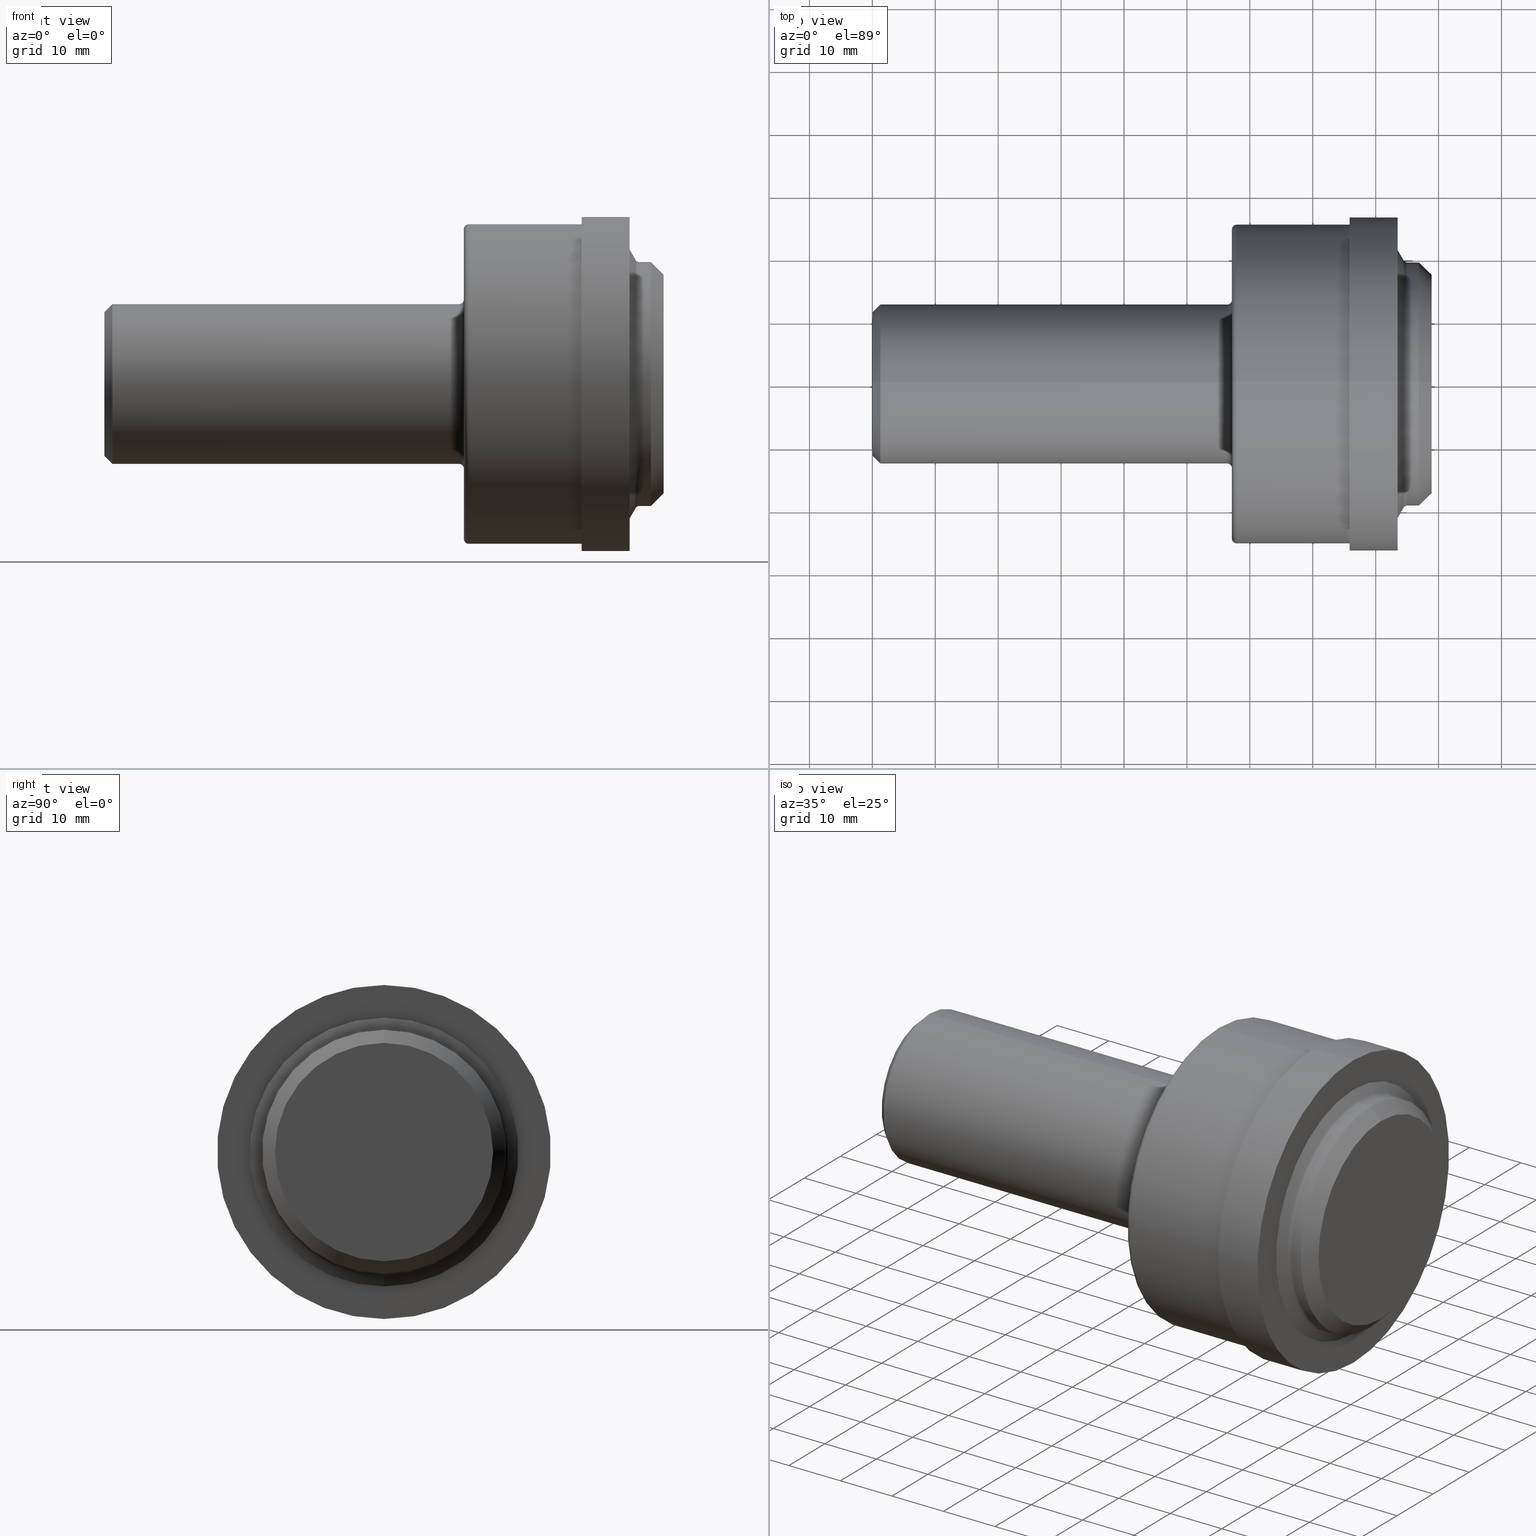
[diagram: canonical four-view strip — front | top / right | iso, engineering-drawing reading convention]
A machine part, canonical four-view strip (front | top / right | iso — engineering-drawing reading convention). The complete STEP part file that produces these views, byte-faithful:
ISO-10303-21;
HEADER;
FILE_DESCRIPTION (( 'STEP AP203' ),
    '1' );
FILE_NAME ('AS5202-18X.STEP',
    '2023-11-10T23:54:02',
    ( '' ),
    ( '' ),
    'SwSTEP 2.0',
    'SolidWorks 2022',
    '' );
FILE_SCHEMA (( 'CONFIG_CONTROL_DESIGN' ));
ENDSEC;

DATA;
#1 = VECTOR ( 'NONE', #225, 39.37007874015748143 ) ;
#2 = DIRECTION ( 'NONE',  ( -1.000000000000000000, -0.000000000000000000, -0.000000000000000000 ) ) ;
#3 = CARTESIAN_POINT ( 'NONE',  ( 3.500000000000000000, 8.855421004634508319E-17, -0.6830999999999995964 ) ) ;
#4 = ADVANCED_FACE ( 'NONE', ( #254 ), #531, .T. ) ;
#5 = ORIENTED_EDGE ( 'NONE', *, *, #406, .T. ) ;
#6 = DIRECTION ( 'NONE',  ( -1.000000000000000000, -0.000000000000000000, -0.000000000000000000 ) ) ;
#7 = LINE ( 'NONE', #502, #387 ) ;
#8 = ORIENTED_EDGE ( 'NONE', *, *, #373, .F. ) ;
#9 = CIRCLE ( 'NONE', #666, 1.000000000000000000 ) ;
#10 = FACE_OUTER_BOUND ( 'NONE', #64, .T. ) ;
#11 = ORIENTED_EDGE ( 'NONE', *, *, #582, .T. ) ;
#12 = ORIENTED_EDGE ( 'NONE', *, *, #138, .T. ) ;
#13 = ADVANCED_FACE ( 'NONE', ( #421 ), #324, .F. ) ;
#14 = CIRCLE ( 'NONE', #695, 0.4998500000000000165 ) ;
#15 = SHAPE_DEFINITION_REPRESENTATION ( #604, #409 ) ;
#16 = AXIS2_PLACEMENT_3D ( 'NONE', #615, #623, #239 ) ;
#17 = DIRECTION ( 'NONE',  ( 0.7071067811865489050, 0.000000000000000000, -0.7071067811865461294 ) ) ;
#18 = ORIENTED_EDGE ( 'NONE', *, *, #364, .T. ) ;
#19 = EDGE_LOOP ( 'NONE', ( #578, #5, #367, #374 ) ) ;
#20 = ORIENTED_EDGE ( 'NONE', *, *, #701, .T. ) ;
#21 = PERSON_AND_ORGANIZATION ( #342, #663 ) ;
#22 = CARTESIAN_POINT ( 'NONE',  ( 0.000000000000000000, 0.000000000000000000, 0.000000000000000000 ) ) ;
#23 = VERTEX_POINT ( 'NONE', #634 ) ;
#24 = ORIENTED_EDGE ( 'NONE', *, *, #500, .T. ) ;
#25 = VERTEX_POINT ( 'NONE', #148 ) ;
#26 = DIRECTION ( 'NONE',  ( -1.000000000000000000, -0.000000000000000000, -0.000000000000000000 ) ) ;
#27 = CARTESIAN_POINT ( 'NONE',  ( 2.220000000000000195, 0.000000000000000000, 0.000000000000000000 ) ) ;
#28 = AXIS2_PLACEMENT_3D ( 'NONE', #116, #45, #219 ) ;
#29 = ORIENTED_EDGE ( 'NONE', *, *, #699, .F. ) ;
#30 = DIRECTION ( 'NONE',  ( -1.000000000000000000, -0.000000000000000000, -0.000000000000000000 ) ) ;
#31 = EDGE_CURVE ( 'NONE', #591, #562, #79, .T. ) ;
#32 = CONICAL_SURFACE ( 'NONE', #523, 0.6830999999999995964, 0.7853981633974491672 ) ;
#33 = LINE ( 'NONE', #247, #426 ) ;
#34 = CONICAL_SURFACE ( 'NONE', #652, 0.6830999999999995964, 0.7853981633974491672 ) ;
#35 = VERTEX_POINT ( 'NONE', #193 ) ;
#36 = DIRECTION ( 'NONE',  ( -1.000000000000000000, -0.000000000000000000, -0.000000000000000000 ) ) ;
#37 = CIRCLE ( 'NONE', #139, 0.4498500000000001942 ) ;
#38 = CARTESIAN_POINT ( 'NONE',  ( 2.279999999999999805, 0.000000000000000000, 0.000000000000000000 ) ) ;
#39 = CARTESIAN_POINT ( 'NONE',  ( 0.000000000000000000, 5.815235325751207941E-17, 0.4498500000000001942 ) ) ;
#40 = DIRECTION ( 'NONE',  ( 0.000000000000000000, 0.000000000000000000, 1.000000000000000000 ) ) ;
#41 = TOROIDAL_SURFACE ( 'NONE', #610, 0.9700000000000000844, 0.02999999999999995379 ) ;
#42 = DIRECTION ( 'NONE',  ( -1.000000000000000000, -0.000000000000000000, -0.000000000000000000 ) ) ;
#43 = CARTESIAN_POINT ( 'NONE',  ( 3.500000000000000000, 0.6830999999999995964, 0.000000000000000000 ) ) ;
#44 = APPROVAL ( #631, 'UNSPECIFIED' ) ;
#45 = DIRECTION ( 'NONE',  ( -1.000000000000000000, -0.000000000000000000, -0.000000000000000000 ) ) ;
#46 = CC_DESIGN_APPROVAL ( #56, ( #382 ) ) ;
#47 = CARTESIAN_POINT ( 'NONE',  ( 3.323892682201216697, 0.000000000000000000, 0.000000000000000000 ) ) ;
#48 = DIRECTION ( 'NONE',  ( 0.000000000000000000, 0.000000000000000000, 1.000000000000000000 ) ) ;
#49 = EDGE_CURVE ( 'NONE', #399, #629, #288, .T. ) ;
#50 = DIRECTION ( 'NONE',  ( -1.000000000000000000, -0.000000000000000000, -0.000000000000000000 ) ) ;
#51 = DIRECTION ( 'NONE',  ( 0.000000000000000000, 0.000000000000000000, 1.000000000000000000 ) ) ;
#52 = EDGE_CURVE ( 'NONE', #570, #402, #142, .T. ) ;
#53 = FACE_OUTER_BOUND ( 'NONE', #354, .T. ) ;
#54 = DIRECTION ( 'NONE',  ( -0.7071067811865469066, 0.000000000000000000, 0.7071067811865481278 ) ) ;
#55 = ORIENTED_EDGE ( 'NONE', *, *, #122, .F. ) ;
#56 = APPROVAL ( #477, 'UNSPECIFIED' ) ;
#57 = DIRECTION ( 'NONE',  ( 0.000000000000000000, 0.000000000000000000, 1.000000000000000000 ) ) ;
#58 = LINE ( 'NONE', #456, #1 ) ;
#59 = ORIENTED_EDGE ( 'NONE', *, *, #504, .F. ) ;
#60 = CIRCLE ( 'NONE', #476, 0.9700000000000000844 ) ;
#61 = EDGE_CURVE ( 'NONE', #402, #570, #229, .T. ) ;
#62 = PERSON_AND_ORGANIZATION ( #342, #663 ) ;
#63 = DIRECTION ( 'NONE',  ( -1.000000000000000000, -0.000000000000000000, -0.000000000000000000 ) ) ;
#64 = EDGE_LOOP ( 'NONE', ( #678, #181, #585, #190 ) ) ;
#65 = TOROIDAL_SURFACE ( 'NONE', #28, 0.7921000000000000263, 0.02900000000000045944 ) ;
#66 = DATE_AND_TIME ( #128, #412 ) ;
#67 = CIRCLE ( 'NONE', #544, 0.4998500000000000165 ) ;
#68 = CARTESIAN_POINT ( 'NONE',  ( 3.349007418910965317, 9.345279724293448517E-17, -0.7630999999999995564 ) ) ;
#69 = PRODUCT_DEFINITION ( 'UNKNOWN', '', #99, #528 ) ;
#70 = ORIENTED_EDGE ( 'NONE', *, *, #537, .F. ) ;
#71 = LINE ( 'NONE', #424, #443 ) ;
#72 = ORIENTED_EDGE ( 'NONE', *, *, #31, .F. ) ;
#73 = ADVANCED_FACE ( 'NONE', ( #314 ), #649, .T. ) ;
#74 = CIRCLE ( 'NONE', #606, 0.7630999999999995564 ) ;
#75 = ORIENTED_EDGE ( 'NONE', *, *, #61, .T. ) ;
#76 = DIRECTION ( 'NONE',  ( -0.000000000000000000, 0.000000000000000000, 1.000000000000000000 ) ) ;
#77 = EDGE_CURVE ( 'NONE', #591, #149, #375, .T. ) ;
#78 = ORIENTED_EDGE ( 'NONE', *, *, #351, .F. ) ;
#79 = CIRCLE ( 'NONE', #450, 0.4998500000000000165 ) ;
#80 = CONICAL_SURFACE ( 'NONE', #491, 0.4998500000000000165, 0.7853981633974463916 ) ;
#81 = VECTOR ( 'NONE', #665, 39.37007874015748143 ) ;
#82 = CARTESIAN_POINT ( 'NONE',  ( 2.279999999999999805, 0.000000000000000000, 0.000000000000000000 ) ) ;
#83 = ORIENTED_EDGE ( 'NONE', *, *, #485, .T. ) ;
#84 = DIRECTION ( 'NONE',  ( 0.000000000000000000, 0.000000000000000000, 1.000000000000000000 ) ) ;
#85 = ORIENTED_EDGE ( 'NONE', *, *, #592, .T. ) ;
#86 = CARTESIAN_POINT ( 'NONE',  ( 3.419999999999999485, 0.000000000000000000, 0.000000000000000000 ) ) ;
#87 = ORIENTED_EDGE ( 'NONE', *, *, #699, .T. ) ;
#88 = CARTESIAN_POINT ( 'NONE',  ( 2.986999999999999655, 0.000000000000000000, 0.000000000000000000 ) ) ;
#89 = PERSON_AND_ORGANIZATION ( #342, #663 ) ;
#90 = EDGE_CURVE ( 'NONE', #625, #474, #484, .T. ) ;
#91 = FACE_OUTER_BOUND ( 'NONE', #206, .T. ) ;
#92 = ORIENTED_EDGE ( 'NONE', *, *, #161, .T. ) ;
#93 = DIRECTION ( 'NONE',  ( -1.000000000000000000, -0.000000000000000000, -0.000000000000000000 ) ) ;
#94 = SECURITY_CLASSIFICATION_LEVEL ( 'unclassified' ) ;
#95 = DIRECTION ( 'NONE',  ( 0.000000000000000000, 0.000000000000000000, 1.000000000000000000 ) ) ;
#96 = AXIS2_PLACEMENT_3D ( 'NONE', #496, #715, #463 ) ;
#97 = ORIENTED_EDGE ( 'NONE', *, *, #358, .F. ) ;
#98 = DIRECTION ( 'NONE',  ( 1.000000000000000000, 0.000000000000000000, 0.000000000000000000 ) ) ;
#99 = PRODUCT_DEFINITION_FORMATION_WITH_SPECIFIED_SOURCE ( 'ANY', '', #296, .NOT_KNOWN. ) ;
#100 = DIRECTION ( 'NONE',  ( 0.000000000000000000, 0.000000000000000000, 1.000000000000000000 ) ) ;
#101 = EDGE_CURVE ( 'NONE', #562, #591, #14, .T. ) ;
#102 = CARTESIAN_POINT ( 'NONE',  ( 2.250000000000000444, 0.000000000000000000, 0.5298500000000000432 ) ) ;
#103 = CARTESIAN_POINT ( 'NONE',  ( 0.000000000000000000, 0.000000000000000000, 0.000000000000000000 ) ) ;
#104 = APPROVAL ( #501, 'UNSPECIFIED' ) ;
#105 = FACE_OUTER_BOUND ( 'NONE', #134, .T. ) ;
#106 = AXIS2_PLACEMENT_3D ( 'NONE', #422, #261, #84 ) ;
#107 = CARTESIAN_POINT ( 'NONE',  ( 0.000000000000000000, 0.000000000000000000, 0.000000000000000000 ) ) ;
#108 = ADVANCED_FACE ( 'NONE', ( #599 ), #662, .T. ) ;
#109 = DIRECTION ( 'NONE',  ( -1.000000000000000000, -0.000000000000000000, -0.000000000000000000 ) ) ;
#110 = CARTESIAN_POINT ( 'NONE',  ( 2.250000000000000444, 0.9700000000000000844, 0.000000000000000000 ) ) ;
#111 = CARTESIAN_POINT ( 'NONE',  ( 2.986999999999999655, 0.000000000000000000, 1.000000000000000000 ) ) ;
#112 = ADVANCED_FACE ( 'NONE', ( #271 ), #65, .F. ) ;
#113 = AXIS2_PLACEMENT_3D ( 'NONE', #210, #146, #632 ) ;
#114 = DIRECTION ( 'NONE',  ( -1.000000000000000000, -0.000000000000000000, -0.000000000000000000 ) ) ;
#115 =( NAMED_UNIT ( * ) SI_UNIT ( $, .STERADIAN. ) SOLID_ANGLE_UNIT ( ) );
#116 = CARTESIAN_POINT ( 'NONE',  ( 3.349007418910966649, 0.000000000000000000, 0.000000000000000000 ) ) ;
#117 = AXIS2_PLACEMENT_3D ( 'NONE', #22, #252, #196 ) ;
#118 = ORIENTED_EDGE ( 'NONE', *, *, #306, .T. ) ;
#119 = AXIS2_PLACEMENT_3D ( 'NONE', #384, #546, #333 ) ;
#120 = DIRECTION ( 'NONE',  ( 0.000000000000000000, 0.000000000000000000, -1.000000000000000000 ) ) ;
#121 = ORIENTED_EDGE ( 'NONE', *, *, #351, .T. ) ;
#122 = EDGE_CURVE ( 'NONE', #194, #379, #331, .T. ) ;
#123 = MECHANICAL_CONTEXT ( 'NONE', #307, 'mechanical' ) ;
#124 = DIRECTION ( 'NONE',  ( 0.000000000000000000, 0.000000000000000000, 1.000000000000000000 ) ) ;
#125 = EDGE_LOOP ( 'NONE', ( #417, #686 ) ) ;
#126 = AXIS2_PLACEMENT_3D ( 'NONE', #517, #378, #95 ) ;
#127 = CIRCLE ( 'NONE', #160, 1.000000000000000000 ) ;
#128 = CALENDAR_DATE ( 2023, 10, 11 ) ;
#129 = CARTESIAN_POINT ( 'NONE',  ( 3.286999999999999478, 0.000000000000000000, 0.000000000000000000 ) ) ;
#130 = ORIENTED_EDGE ( 'NONE', *, *, #454, .T. ) ;
#131 = DIRECTION ( 'NONE',  ( -0.000000000000000000, 1.000000000000000000, 1.224646799147353207E-16 ) ) ;
#132 = ADVANCED_FACE ( 'NONE', ( #391 ), #355, .T. ) ;
#133 = DIRECTION ( 'NONE',  ( 0.000000000000000000, -1.000000000000000000, 0.000000000000000000 ) ) ;
#134 = EDGE_LOOP ( 'NONE', ( #78, #416 ) ) ;
#135 = APPROVAL_PERSON_ORGANIZATION ( #622, #104, #233 ) ;
#136 = VERTEX_POINT ( 'NONE', #539 ) ;
#137 = CARTESIAN_POINT ( 'NONE',  ( 3.286999999999999478, 0.000000000000000000, 0.000000000000000000 ) ) ;
#138 = EDGE_CURVE ( 'NONE', #360, #379, #145, .T. ) ;
#139 = AXIS2_PLACEMENT_3D ( 'NONE', #361, #526, #572 ) ;
#140 = VERTEX_POINT ( 'NONE', #493 ) ;
#141 = VERTEX_POINT ( 'NONE', #39 ) ;
#142 = CIRCLE ( 'NONE', #106, 1.044999999999999929 ) ;
#143 = TOROIDAL_SURFACE ( 'NONE', #522, 0.5298500000000000432, 0.03000000000000012379 ) ;
#144 = APPROVAL_DATE_TIME ( #319, #56 ) ;
#145 = CIRCLE ( 'NONE', #660, 0.02900000000000042821 ) ;
#146 = DIRECTION ( 'NONE',  ( -1.000000000000000000, -0.000000000000000000, -0.000000000000000000 ) ) ;
#147 = EDGE_LOOP ( 'NONE', ( #235, #672 ) ) ;
#148 = CARTESIAN_POINT ( 'NONE',  ( 3.419999999999999485, 0.000000000000000000, 0.7631000000000000005 ) ) ;
#149 = VERTEX_POINT ( 'NONE', #551 ) ;
#150 = CARTESIAN_POINT ( 'NONE',  ( 0.000000000000000000, 1.279755905108984103E-16, -1.044999999999999929 ) ) ;
#151 = EDGE_LOOP ( 'NONE', ( #341, #455, #535, #614 ) ) ;
#152 = DIRECTION ( 'NONE',  ( 0.000000000000000000, 0.000000000000000000, 1.000000000000000000 ) ) ;
#153 = APPROVAL_PERSON_ORGANIZATION ( #89, #56, #694 ) ;
#154 = PERSON_AND_ORGANIZATION_ROLE ( 'design_supplier' ) ;
#155 = DIRECTION ( 'NONE',  ( 0.000000000000000000, 0.000000000000000000, 1.000000000000000000 ) ) ;
#156 = EDGE_LOOP ( 'NONE', ( #669, #248, #346, #92 ) ) ;
#157 = CARTESIAN_POINT ( 'NONE',  ( 2.279999999999999805, 0.000000000000000000, 0.000000000000000000 ) ) ;
#158 = CARTESIAN_POINT ( 'NONE',  ( 0.000000000000000000, 9.345279724293450983E-17, -0.7630999999999998895 ) ) ;
#159 = CARTESIAN_POINT ( 'NONE',  ( 3.500000000000000000, 0.000000000000000000, 0.000000000000000000 ) ) ;
#160 = AXIS2_PLACEMENT_3D ( 'NONE', #220, #650, #541 ) ;
#161 = EDGE_CURVE ( 'NONE', #149, #305, #67, .T. ) ;
#162 = DIMENSIONAL_EXPONENTS ( 1.000000000000000000, 0.000000000000000000, 0.000000000000000000, 0.000000000000000000, 0.000000000000000000, 0.000000000000000000, 0.000000000000000000 ) ;
#163 = DIRECTION ( 'NONE',  ( -1.000000000000000000, -0.000000000000000000, -0.000000000000000000 ) ) ;
#164 = CARTESIAN_POINT ( 'NONE',  ( 3.349007418910966649, 9.700427296046183859E-17, -0.7921000000000000263 ) ) ;
#165 = AXIS2_PLACEMENT_3D ( 'NONE', #446, #133, #120 ) ;
#166 = EDGE_CURVE ( 'NONE', #369, #140, #232, .T. ) ;
#167 = CARTESIAN_POINT ( 'NONE',  ( 0.05000000000000000278, 0.000000000000000000, 0.000000000000000000 ) ) ;
#168 = DIRECTION ( 'NONE',  ( 0.000000000000000000, 0.000000000000000000, 1.000000000000000000 ) ) ;
#169 = DIRECTION ( 'NONE',  ( -1.000000000000000000, -0.000000000000000000, -0.000000000000000000 ) ) ;
#170 = CIRCLE ( 'NONE', #362, 0.9700000000000000844 ) ;
#171 = PLANE ( 'NONE',  #534 ) ;
#172 = DIRECTION ( 'NONE',  ( -0.7071067811865469066, 8.659560562354940254E-17, -0.7071067811865481278 ) ) ;
#173 = AXIS2_PLACEMENT_3D ( 'NONE', #494, #590, #40 ) ;
#174 = VERTEX_POINT ( 'NONE', #711 ) ;
#175 =( CONVERSION_BASED_UNIT ( 'INCH', #505 ) LENGTH_UNIT ( ) NAMED_UNIT ( #162 ) );
#176 = LINE ( 'NONE', #561, #231 ) ;
#177 = ORIENTED_EDGE ( 'NONE', *, *, #377, .T. ) ;
#178 = EDGE_CURVE ( 'NONE', #369, #570, #499, .T. ) ;
#179 = PERSON_AND_ORGANIZATION_ROLE ( 'creator' ) ;
#180 = DIRECTION ( 'NONE',  ( -1.000000000000000000, -0.000000000000000000, -0.000000000000000000 ) ) ;
#181 = ORIENTED_EDGE ( 'NONE', *, *, #77, .T. ) ;
#182 = ADVANCED_FACE ( 'NONE', ( #381 ), #32, .T. ) ;
#183 = FACE_OUTER_BOUND ( 'NONE', #198, .T. ) ;
#184 = EDGE_LOOP ( 'NONE', ( #85, #349 ) ) ;
#185 = UNCERTAINTY_MEASURE_WITH_UNIT (LENGTH_MEASURE( 1.000000000000000082E-05 ), #175, 'distance_accuracy_value', 'NONE');
#186 = ADVANCED_FACE ( 'NONE', ( #395 ), #431, .T. ) ;
#187 = APPROVAL_ROLE ( '' ) ;
#188 = CARTESIAN_POINT ( 'NONE',  ( 3.323892682201216697, 9.522853510169822351E-17, -0.7776000000000002910 ) ) ;
#189 = ORIENTED_EDGE ( 'NONE', *, *, #713, .T. ) ;
#190 = ORIENTED_EDGE ( 'NONE', *, *, #293, .F. ) ;
#191 = CARTESIAN_POINT ( 'NONE',  ( 2.986999999999999655, 1.224646799147353207E-16, -1.000000000000000000 ) ) ;
#192 = CC_DESIGN_PERSON_AND_ORGANIZATION_ASSIGNMENT ( #21, #626, ( #382 ) ) ;
#193 = CARTESIAN_POINT ( 'NONE',  ( 3.286999999999999478, 0.000000000000000000, 0.8415000000000000258 ) ) ;
#194 = VERTEX_POINT ( 'NONE', #655 ) ;
#195 = AXIS2_PLACEMENT_3D ( 'NONE', #43, #270, #273 ) ;
#196 = DIRECTION ( 'NONE',  ( 0.000000000000000000, 0.000000000000000000, 1.000000000000000000 ) ) ;
#197 = ORIENTED_EDGE ( 'NONE', *, *, #306, .F. ) ;
#198 = EDGE_LOOP ( 'NONE', ( #226, #724, #203, #414 ) ) ;
#199 = ADVANCED_FACE ( 'NONE', ( #705, #490 ), #171, .F. ) ;
#200 = EDGE_LOOP ( 'NONE', ( #621, #11 ) ) ;
#201 = COORDINATED_UNIVERSAL_TIME_OFFSET ( 8, 0, .BEHIND. ) ;
#202 = CIRCLE ( 'NONE', #16, 0.7631000000000000005 ) ;
#203 = ORIENTED_EDGE ( 'NONE', *, *, #461, .T. ) ;
#204 = DATE_AND_TIME ( #583, #442 ) ;
#205 = DIRECTION ( 'NONE',  ( -1.000000000000000000, -0.000000000000000000, -0.000000000000000000 ) ) ;
#206 = EDGE_LOOP ( 'NONE', ( #230, #681, #581, #366 ) ) ;
#207 = DIRECTION ( 'NONE',  ( -1.000000000000000000, -0.000000000000000000, -0.000000000000000000 ) ) ;
#208 = AXIS2_PLACEMENT_3D ( 'NONE', #320, #688, #419 ) ;
#209 = ADVANCED_FACE ( 'NONE', ( #595 ), #389, .T. ) ;
#210 = CARTESIAN_POINT ( 'NONE',  ( 0.05000000000000000278, 0.000000000000000000, 0.000000000000000000 ) ) ;
#211 = ORIENTED_EDGE ( 'NONE', *, *, #386, .T. ) ;
#212 = CLOSED_SHELL ( 'NONE', ( #340, #317, #548, #565, #209, #4, #132, #423, #186, #182, #667, #708, #73, #112, #556, #439, #246, #327, #532, #497, #199, #608, #108, #569, #13 ) ) ;
#213 = CARTESIAN_POINT ( 'NONE',  ( 2.250000000000000444, 0.000000000000000000, 0.000000000000000000 ) ) ;
#214 = AXIS2_PLACEMENT_3D ( 'NONE', #680, #228, #453 ) ;
#215 = CARTESIAN_POINT ( 'NONE',  ( 0.000000000000000000, 0.000000000000000000, 0.000000000000000000 ) ) ;
#216 = CARTESIAN_POINT ( 'NONE',  ( 0.000000000000000000, 0.000000000000000000, -0.4498500000000001942 ) ) ;
#217 = DIRECTION ( 'NONE',  ( -1.000000000000000000, -0.000000000000000000, -0.000000000000000000 ) ) ;
#218 = TOROIDAL_SURFACE ( 'NONE', #126, 0.7921000000000000263, 0.02900000000000045944 ) ;
#219 = DIRECTION ( 'NONE',  ( 0.000000000000000000, 0.000000000000000000, 1.000000000000000000 ) ) ;
#220 = CARTESIAN_POINT ( 'NONE',  ( 2.279999999999999805, 0.000000000000000000, 0.000000000000000000 ) ) ;
#221 = CARTESIAN_POINT ( 'NONE',  ( 3.286999999999999478, 0.000000000000000000, 0.000000000000000000 ) ) ;
#222 = CARTESIAN_POINT ( 'NONE',  ( 2.986999999999999655, 0.000000000000000000, 1.044999999999999929 ) ) ;
#223 = DIRECTION ( 'NONE',  ( 0.000000000000000000, 0.000000000000000000, 1.000000000000000000 ) ) ;
#224 = CIRCLE ( 'NONE', #208, 0.03000000000000015848 ) ;
#225 = DIRECTION ( 'NONE',  ( -1.000000000000000000, -0.000000000000000000, -0.000000000000000000 ) ) ;
#226 = ORIENTED_EDGE ( 'NONE', *, *, #582, .F. ) ;
#227 = DIRECTION ( 'NONE',  ( 0.000000000000000000, 0.000000000000000000, 1.000000000000000000 ) ) ;
#228 = DIRECTION ( 'NONE',  ( 1.000000000000000000, 0.000000000000000000, 0.000000000000000000 ) ) ;
#229 = CIRCLE ( 'NONE', #328, 1.044999999999999929 ) ;
#230 = ORIENTED_EDGE ( 'NONE', *, *, #664, .F. ) ;
#231 = VECTOR ( 'NONE', #172, 39.37007874015748143 ) ;
#232 = CIRCLE ( 'NONE', #330, 1.044999999999999929 ) ;
#233 = APPROVAL_ROLE ( '' ) ;
#234 = CARTESIAN_POINT ( 'NONE',  ( 0.05000000000000000278, 6.121397025538045565E-17, 0.4998500000000000165 ) ) ;
#235 = ORIENTED_EDGE ( 'NONE', *, *, #166, .F. ) ;
#236 = DIRECTION ( 'NONE',  ( 0.000000000000000000, 0.000000000000000000, 1.000000000000000000 ) ) ;
#237 = DIRECTION ( 'NONE',  ( 0.000000000000000000, 0.000000000000000000, 1.000000000000000000 ) ) ;
#238 = ORIENTED_EDGE ( 'NONE', *, *, #394, .F. ) ;
#239 = DIRECTION ( 'NONE',  ( 0.000000000000000000, 0.000000000000000000, 1.000000000000000000 ) ) ;
#240 = ORIENTED_EDGE ( 'NONE', *, *, #664, .T. ) ;
#241 = CIRCLE ( 'NONE', #452, 1.000000000000000000 ) ;
#242 = EDGE_CURVE ( 'NONE', #625, #479, #339, .T. ) ;
#243 = DIRECTION ( 'NONE',  ( 0.000000000000000000, 0.000000000000000000, 1.000000000000000000 ) ) ;
#244 = ORIENTED_EDGE ( 'NONE', *, *, #377, .F. ) ;
#245 = ORIENTED_EDGE ( 'NONE', *, *, #592, .F. ) ;
#246 = ADVANCED_FACE ( 'NONE', ( #549 ), #274, .T. ) ;
#247 = CARTESIAN_POINT ( 'NONE',  ( 0.000000000000000000, 0.000000000000000000, 0.7630999999999998895 ) ) ;
#248 = ORIENTED_EDGE ( 'NONE', *, *, #519, .F. ) ;
#249 = DIRECTION ( 'NONE',  ( 0.000000000000000000, 0.000000000000000000, 1.000000000000000000 ) ) ;
#250 = DATE_AND_TIME ( #372, #312 ) ;
#251 = AXIS2_PLACEMENT_3D ( 'NONE', #451, #619, #57 ) ;
#252 = DIRECTION ( 'NONE',  ( -1.000000000000000000, -0.000000000000000000, -0.000000000000000000 ) ) ;
#253 = ORIENTED_EDGE ( 'NONE', *, *, #552, .F. ) ;
#254 = FACE_OUTER_BOUND ( 'NONE', #630, .T. ) ;
#255 = VECTOR ( 'NONE', #93, 39.37007874015748143 ) ;
#256 = PERSON_AND_ORGANIZATION_ROLE ( 'creator' ) ;
#257 = CARTESIAN_POINT ( 'NONE',  ( 2.220000000000000195, 0.000000000000000000, 0.5298500000000000432 ) ) ;
#258 = EDGE_LOOP ( 'NONE', ( #8, #87, #18, #684 ) ) ;
#259 = CARTESIAN_POINT ( 'NONE',  ( 2.220000000000000195, 0.000000000000000000, 0.000000000000000000 ) ) ;
#260 = DIRECTION ( 'NONE',  ( 0.000000000000000000, 0.000000000000000000, 1.000000000000000000 ) ) ;
#261 = DIRECTION ( 'NONE',  ( -1.000000000000000000, -0.000000000000000000, -0.000000000000000000 ) ) ;
#262 = EDGE_CURVE ( 'NONE', #141, #305, #279, .T. ) ;
#263 = DIRECTION ( 'NONE',  ( 0.000000000000000000, -1.000000000000000000, 0.000000000000000000 ) ) ;
#264 = DIRECTION ( 'NONE',  ( -1.000000000000000000, -0.000000000000000000, -0.000000000000000000 ) ) ;
#265 = AXIS2_PLACEMENT_3D ( 'NONE', #390, #163, #383 ) ;
#266 = EDGE_CURVE ( 'NONE', #629, #25, #613, .T. ) ;
#267 = DIRECTION ( 'NONE',  ( 0.000000000000000000, 0.000000000000000000, 1.000000000000000000 ) ) ;
#268 = AXIS2_PLACEMENT_3D ( 'NONE', #668, #671, #297 ) ;
#269 = DIRECTION ( 'NONE',  ( -1.000000000000000000, -0.000000000000000000, -0.000000000000000000 ) ) ;
#270 = DIRECTION ( 'NONE',  ( -1.000000000000000000, 0.000000000000000000, -0.000000000000000000 ) ) ;
#271 = FACE_OUTER_BOUND ( 'NONE', #624, .T. ) ;
#272 = LOCAL_TIME ( 15, 54, 2.000000000000000000, #201 ) ;
#273 = DIRECTION ( 'NONE',  ( -0.000000000000000000, 0.000000000000000000, 1.000000000000000000 ) ) ;
#274 = CYLINDRICAL_SURFACE ( 'NONE', #96, 1.044999999999999929 ) ;
#275 = CC_DESIGN_PERSON_AND_ORGANIZATION_ASSIGNMENT ( #410, #154, ( #99 ) ) ;
#276 = DIRECTION ( 'NONE',  ( 0.000000000000000000, 0.000000000000000000, -1.000000000000000000 ) ) ;
#277 = DIRECTION ( 'NONE',  ( 0.000000000000000000, 0.000000000000000000, 1.000000000000000000 ) ) ;
#278 =( NAMED_UNIT ( * ) PLANE_ANGLE_UNIT ( ) SI_UNIT ( $, .RADIAN. ) );
#279 = LINE ( 'NONE', #234, #510 ) ;
#280 = ORIENTED_EDGE ( 'NONE', *, *, #560, .T. ) ;
#281 = CARTESIAN_POINT ( 'NONE',  ( 2.250000000000000444, 0.000000000000000000, 0.000000000000000000 ) ) ;
#282 = AXIS2_PLACEMENT_3D ( 'NONE', #86, #309, #260 ) ;
#283 = FACE_BOUND ( 'NONE', #691, .T. ) ;
#284 = EDGE_LOOP ( 'NONE', ( #29, #12, #299, #244 ) ) ;
#285 = AXIS2_PLACEMENT_3D ( 'NONE', #714, #131, #356 ) ;
#286 = PERSON_AND_ORGANIZATION_ROLE ( 'design_owner' ) ;
#287 = CYLINDRICAL_SURFACE ( 'NONE', #611, 0.4998500000000000165 ) ;
#288 = CIRCLE ( 'NONE', #648, 0.6830999999999995964 ) ;
#289 = EDGE_LOOP ( 'NONE', ( #573, #408, #567, #520 ) ) ;
#290 = VECTOR ( 'NONE', #620, 39.37007874015748143 ) ;
#291 = PERSON_AND_ORGANIZATION ( #342, #663 ) ;
#292 = CARTESIAN_POINT ( 'NONE',  ( 3.349007418910965317, 0.000000000000000000, 0.7630999999999995564 ) ) ;
#293 = EDGE_CURVE ( 'NONE', #562, #305, #58, .T. ) ;
#294 = ORIENTED_EDGE ( 'NONE', *, *, #646, .F. ) ;
#295 = CARTESIAN_POINT ( 'NONE',  ( 3.500000000000000000, 0.000000000000000000, 0.000000000000000000 ) ) ;
#296 = PRODUCT ( 'AS5202-18X', 'AS5202-18X', '', ( #123 ) ) ;
#297 = DIRECTION ( 'NONE',  ( 0.000000000000000000, 0.000000000000000000, 1.000000000000000000 ) ) ;
#298 = AXIS2_PLACEMENT_3D ( 'NONE', #82, #529, #586 ) ;
#299 = ORIENTED_EDGE ( 'NONE', *, *, #600, .T. ) ;
#300 = VERTEX_POINT ( 'NONE', #292 ) ;
#301 = CYLINDRICAL_SURFACE ( 'NONE', #117, 1.000000000000000000 ) ;
#302 = ORIENTED_EDGE ( 'NONE', *, *, #90, .F. ) ;
#303 = AXIS2_PLACEMENT_3D ( 'NONE', #639, #470, #685 ) ;
#304 = CONICAL_SURFACE ( 'NONE', #368, 0.7775999999999999579, 1.047197551196598297 ) ;
#305 = VERTEX_POINT ( 'NONE', #723 ) ;
#306 = EDGE_CURVE ( 'NONE', #25, #194, #202, .T. ) ;
#307 = APPLICATION_CONTEXT ( 'configuration controlled 3d designs of mechanical parts and assemblies' ) ;
#308 = COORDINATED_UNIVERSAL_TIME_OFFSET ( 8, 0, .BEHIND. ) ;
#309 = DIRECTION ( 'NONE',  ( -1.000000000000000000, -0.000000000000000000, -0.000000000000000000 ) ) ;
#310 = DIRECTION ( 'NONE',  ( -1.000000000000000000, -0.000000000000000000, -0.000000000000000000 ) ) ;
#311 = CARTESIAN_POINT ( 'NONE',  ( 2.250000000000000000, 0.000000000000000000, 0.000000000000000000 ) ) ;
#312 = LOCAL_TIME ( 15, 54, 2.000000000000000000, #682 ) ;
#313 = EDGE_LOOP ( 'NONE', ( #118, #675, #693, #571 ) ) ;
#314 = FACE_OUTER_BOUND ( 'NONE', #527, .T. ) ;
#315 = CIRCLE ( 'NONE', #516, 0.8415000000000000258 ) ;
#316 = FACE_OUTER_BOUND ( 'NONE', #420, .T. ) ;
#317 = ADVANCED_FACE ( 'NONE', ( #10 ), #287, .T. ) ;
#318 = DIRECTION ( 'NONE',  ( -1.000000000000000000, -0.000000000000000000, -0.000000000000000000 ) ) ;
#319 = DATE_AND_TIME ( #687, #272 ) ;
#320 = CARTESIAN_POINT ( 'NONE',  ( 2.220000000000000195, 6.488791065282250713E-17, -0.5298500000000000432 ) ) ;
#321 = ORIENTED_EDGE ( 'NONE', *, *, #600, .F. ) ;
#322 = CC_DESIGN_APPROVAL ( #104, ( #69 ) ) ;
#323 = FACE_OUTER_BOUND ( 'NONE', #289, .T. ) ;
#324 = PLANE ( 'NONE',  #303 ) ;
#325 = CC_DESIGN_PERSON_AND_ORGANIZATION_ASSIGNMENT ( #525, #256, ( #99 ) ) ;
#326 = DIRECTION ( 'NONE',  ( -1.000000000000000000, -0.000000000000000000, -0.000000000000000000 ) ) ;
#327 = ADVANCED_FACE ( 'NONE', ( #283, #506 ), #338, .F. ) ;
#328 = AXIS2_PLACEMENT_3D ( 'NONE', #88, #310, #427 ) ;
#329 = CARTESIAN_POINT ( 'NONE',  ( 2.250000000000000000, 1.206277097160143073E-16, -0.9700000000000000844 ) ) ;
#330 = AXIS2_PLACEMENT_3D ( 'NONE', #221, #264, #277 ) ;
#331 = LINE ( 'NONE', #158, #580 ) ;
#332 = LINE ( 'NONE', #598, #447 ) ;
#333 = DIRECTION ( 'NONE',  ( 0.000000000000000000, 0.000000000000000000, 1.000000000000000000 ) ) ;
#334 = CIRCLE ( 'NONE', #347, 1.044999999999999929 ) ;
#335 = DIRECTION ( 'NONE',  ( 0.000000000000000000, 0.000000000000000000, 1.000000000000000000 ) ) ;
#336 = DIRECTION ( 'NONE',  ( 0.000000000000000000, -1.224646799147355672E-16, 1.000000000000000000 ) ) ;
#337 = CIRCLE ( 'NONE', #704, 0.02999999999999995379 ) ;
#338 = PLANE ( 'NONE',  #214 ) ;
#339 = CIRCLE ( 'NONE', #119, 1.000000000000000000 ) ;
#340 = ADVANCED_FACE ( 'NONE', ( #183 ), #577, .T. ) ;
#341 = ORIENTED_EDGE ( 'NONE', *, *, #77, .F. ) ;
#342 = PERSON ( 'UNSPECIFIED', 'UNSPECIFIED', 'UNSPECIFIED', ('UNSPECIFIED'), ('UNSPECIFIED'), ('UNSPECIFIED') ) ;
#343 = CARTESIAN_POINT ( 'NONE',  ( 2.250000000000000000, 0.000000000000000000, 0.000000000000000000 ) ) ;
#344 = AXIS2_PLACEMENT_3D ( 'NONE', #612, #352, #440 ) ;
#345 = CARTESIAN_POINT ( 'NONE',  ( 3.349007418910965317, 0.000000000000000000, 0.000000000000000000 ) ) ;
#346 = ORIENTED_EDGE ( 'NONE', *, *, #436, .T. ) ;
#347 = AXIS2_PLACEMENT_3D ( 'NONE', #129, #353, #237 ) ;
#348 = DIRECTION ( 'NONE',  ( -1.000000000000000000, -0.000000000000000000, -0.000000000000000000 ) ) ;
#349 = ORIENTED_EDGE ( 'NONE', *, *, #481, .T. ) ;
#350 = AXIS2_PLACEMENT_3D ( 'NONE', #601, #109, #707 ) ;
#351 = EDGE_CURVE ( 'NONE', #629, #399, #397, .T. ) ;
#352 = DIRECTION ( 'NONE',  ( 0.000000000000000000, 0.000000000000000000, 1.000000000000000000 ) ) ;
#353 = DIRECTION ( 'NONE',  ( -1.000000000000000000, -0.000000000000000000, -0.000000000000000000 ) ) ;
#354 = EDGE_LOOP ( 'NONE', ( #97, #518, #475, #457 ) ) ;
#355 = CONICAL_SURFACE ( 'NONE', #388, 0.7775999999999999579, 1.047197551196598297 ) ;
#356 = DIRECTION ( 'NONE',  ( 0.000000000000000000, -1.224646799147354933E-16, 1.000000000000000000 ) ) ;
#357 = CARTESIAN_POINT ( 'NONE',  ( 2.986999999999999655, 0.000000000000000000, 0.000000000000000000 ) ) ;
#358 = EDGE_CURVE ( 'NONE', #399, #194, #176, .T. ) ;
#359 = ORIENTED_EDGE ( 'NONE', *, *, #537, .T. ) ;
#360 = VERTEX_POINT ( 'NONE', #188 ) ;
#361 = CARTESIAN_POINT ( 'NONE',  ( 0.000000000000000000, 0.000000000000000000, 0.000000000000000000 ) ) ;
#362 = AXIS2_PLACEMENT_3D ( 'NONE', #311, #575, #243 ) ;
#363 = ORIENTED_EDGE ( 'NONE', *, *, #242, .T. ) ;
#364 = EDGE_CURVE ( 'NONE', #174, #35, #401, .T. ) ;
#365 = DIRECTION ( 'NONE',  ( 0.000000000000000000, 0.000000000000000000, 1.000000000000000000 ) ) ;
#366 = ORIENTED_EDGE ( 'NONE', *, *, #617, .F. ) ;
#367 = ORIENTED_EDGE ( 'NONE', *, *, #178, .T. ) ;
#368 = AXIS2_PLACEMENT_3D ( 'NONE', #433, #489, #594 ) ;
#369 = VERTEX_POINT ( 'NONE', #566 ) ;
#370 = PLANE ( 'NONE',  #596 ) ;
#371 = ORIENTED_EDGE ( 'NONE', *, *, #166, .T. ) ;
#372 = CALENDAR_DATE ( 2023, 10, 11 ) ;
#373 = EDGE_CURVE ( 'NONE', #360, #23, #7, .T. ) ;
#374 = ORIENTED_EDGE ( 'NONE', *, *, #61, .F. ) ;
#375 = LINE ( 'NONE', #588, #255 ) ;
#376 = APPROVAL_DATE_TIME ( #204, #44 ) ;
#377 = EDGE_CURVE ( 'NONE', #174, #300, #438, .T. ) ;
#378 = DIRECTION ( 'NONE',  ( -1.000000000000000000, -0.000000000000000000, -0.000000000000000000 ) ) ;
#379 = VERTEX_POINT ( 'NONE', #68 ) ;
#380 = CIRCLE ( 'NONE', #469, 0.5298500000000000432 ) ;
#381 = FACE_OUTER_BOUND ( 'NONE', #515, .T. ) ;
#382 = SECURITY_CLASSIFICATION ( '', '', #94 ) ;
#383 = DIRECTION ( 'NONE',  ( 0.000000000000000000, 0.000000000000000000, 1.000000000000000000 ) ) ;
#384 = CARTESIAN_POINT ( 'NONE',  ( 2.986999999999999655, 0.000000000000000000, 0.000000000000000000 ) ) ;
#385 = AXIS2_PLACEMENT_3D ( 'NONE', #698, #318, #643 ) ;
#386 = EDGE_CURVE ( 'NONE', #300, #379, #74, .T. ) ;
#387 = VECTOR ( 'NONE', #720, 39.37007874015748143 ) ;
#388 = AXIS2_PLACEMENT_3D ( 'NONE', #605, #114, #48 ) ;
#389 = CYLINDRICAL_SURFACE ( 'NONE', #465, 1.000000000000000000 ) ;
#390 = CARTESIAN_POINT ( 'NONE',  ( 3.286999999999999478, 0.000000000000000000, 0.000000000000000000 ) ) ;
#391 = FACE_OUTER_BOUND ( 'NONE', #524, .T. ) ;
#392 = VECTOR ( 'NONE', #26, 39.37007874015748143 ) ;
#393 =( LENGTH_UNIT ( ) NAMED_UNIT ( * ) SI_UNIT ( $, .METRE. ) );
#394 = EDGE_CURVE ( 'NONE', #479, #625, #9, .T. ) ;
#395 = FACE_OUTER_BOUND ( 'NONE', #313, .T. ) ;
#396 = CIRCLE ( 'NONE', #265, 0.8415000000000000258 ) ;
#397 = CIRCLE ( 'NONE', #268, 0.6830999999999995964 ) ;
#398 = CARTESIAN_POINT ( 'NONE',  ( 3.500000000000000000, 0.000000000000000000, 0.6830999999999995964 ) ) ;
#399 = VERTEX_POINT ( 'NONE', #3 ) ;
#400 = APPLICATION_PROTOCOL_DEFINITION ( 'international standard', 'config_control_design', 1994, #307 ) ;
#401 = LINE ( 'NONE', #411, #290 ) ;
#402 = VERTEX_POINT ( 'NONE', #568 ) ;
#403 = COORDINATED_UNIVERSAL_TIME_OFFSET ( 8, 0, .BEHIND. ) ;
#404 = DIRECTION ( 'NONE',  ( 0.000000000000000000, 0.000000000000000000, -1.000000000000000000 ) ) ;
#405 = EDGE_LOOP ( 'NONE', ( #280, #480, #59, #70 ) ) ;
#406 = EDGE_CURVE ( 'NONE', #140, #369, #334, .T. ) ;
#407 = VERTEX_POINT ( 'NONE', #459 ) ;
#408 = ORIENTED_EDGE ( 'NONE', *, *, #101, .F. ) ;
#409 = ADVANCED_BREP_SHAPE_REPRESENTATION ( 'AS5202-18X', ( #653, #344 ), #627 ) ;
#410 = PERSON_AND_ORGANIZATION ( #342, #663 ) ;
#411 = CARTESIAN_POINT ( 'NONE',  ( 3.323892682201216697, 0.000000000000000000, 0.7775999999999999579 ) ) ;
#412 = LOCAL_TIME ( 15, 54, 2.000000000000000000, #403 ) ;
#413 = ORIENTED_EDGE ( 'NONE', *, *, #646, .T. ) ;
#414 = ORIENTED_EDGE ( 'NONE', *, *, #436, .F. ) ;
#415 = CARTESIAN_POINT ( 'NONE',  ( 2.279999999999999805, 0.000000000000000000, 1.000000000000000000 ) ) ;
#416 = ORIENTED_EDGE ( 'NONE', *, *, #49, .F. ) ;
#417 = ORIENTED_EDGE ( 'NONE', *, *, #644, .F. ) ;
#418 = CIRCLE ( 'NONE', #633, 0.5298500000000000432 ) ;
#419 = DIRECTION ( 'NONE',  ( 0.000000000000000000, -1.224646799147351482E-16, 1.000000000000000000 ) ) ;
#420 = EDGE_LOOP ( 'NONE', ( #72, #508, #189, #253 ) ) ;
#421 = FACE_OUTER_BOUND ( 'NONE', #200, .T. ) ;
#422 = CARTESIAN_POINT ( 'NONE',  ( 2.986999999999999655, 0.000000000000000000, 0.000000000000000000 ) ) ;
#423 = ADVANCED_FACE ( 'NONE', ( #677 ), #218, .F. ) ;
#424 = CARTESIAN_POINT ( 'NONE',  ( 0.05000000000000000278, 0.000000000000000000, -0.4998500000000000165 ) ) ;
#425 = CARTESIAN_POINT ( 'NONE',  ( 0.000000000000000000, 0.000000000000000000, 0.000000000000000000 ) ) ;
#426 = VECTOR ( 'NONE', #642, 39.37007874015748143 ) ;
#427 = DIRECTION ( 'NONE',  ( 0.000000000000000000, 0.000000000000000000, 1.000000000000000000 ) ) ;
#428 = DIRECTION ( 'NONE',  ( -1.000000000000000000, -0.000000000000000000, -0.000000000000000000 ) ) ;
#429 = CARTESIAN_POINT ( 'NONE',  ( 0.000000000000000000, 0.000000000000000000, 1.044999999999999929 ) ) ;
#430 = DIRECTION ( 'NONE',  ( -1.000000000000000000, -0.000000000000000000, -0.000000000000000000 ) ) ;
#431 = CYLINDRICAL_SURFACE ( 'NONE', #716, 0.7630999999999998895 ) ;
#432 = CC_DESIGN_DATE_AND_TIME_ASSIGNMENT ( #250, #636, ( #382 ) ) ;
#433 = CARTESIAN_POINT ( 'NONE',  ( 3.323892682201216697, 0.000000000000000000, 0.000000000000000000 ) ) ;
#434 = TOROIDAL_SURFACE ( 'NONE', #540, 0.5298500000000000432, 0.03000000000000012379 ) ;
#435 = DIRECTION ( 'NONE',  ( 1.000000000000000000, 0.000000000000000000, 0.000000000000000000 ) ) ;
#436 = EDGE_CURVE ( 'NONE', #609, #149, #71, .T. ) ;
#437 = CARTESIAN_POINT ( 'NONE',  ( 2.220000000000000195, 0.000000000000000000, 0.000000000000000000 ) ) ;
#438 = CIRCLE ( 'NONE', #165, 0.02900000000000042821 ) ;
#439 = ADVANCED_FACE ( 'NONE', ( #696, #589 ), #370, .F. ) ;
#440 = DIRECTION ( 'NONE',  ( 1.000000000000000000, 0.000000000000000000, 0.000000000000000000 ) ) ;
#441 = DIRECTION ( 'NONE',  ( -1.000000000000000000, -0.000000000000000000, -0.000000000000000000 ) ) ;
#442 = LOCAL_TIME ( 15, 54, 2.000000000000000000, #308 ) ;
#443 = VECTOR ( 'NONE', #17, 39.37007874015748143 ) ;
#444 = DIRECTION ( 'NONE',  ( 0.000000000000000000, 0.000000000000000000, 1.000000000000000000 ) ) ;
#445 = CC_DESIGN_PERSON_AND_ORGANIZATION_ASSIGNMENT ( #291, #179, ( #69 ) ) ;
#446 = CARTESIAN_POINT ( 'NONE',  ( 3.349007418910966649, 0.000000000000000000, 0.7921000000000000263 ) ) ;
#447 = VECTOR ( 'NONE', #550, 39.37007874015748143 ) ;
#448 = ORIENTED_EDGE ( 'NONE', *, *, #504, .T. ) ;
#449 = APPLICATION_CONTEXT ( 'configuration controlled 3d designs of mechanical parts and assemblies' ) ;
#450 = AXIS2_PLACEMENT_3D ( 'NONE', #27, #207, #249 ) ;
#451 = CARTESIAN_POINT ( 'NONE',  ( 3.323892682201216697, 0.000000000000000000, 0.000000000000000000 ) ) ;
#452 = AXIS2_PLACEMENT_3D ( 'NONE', #38, #50, #717 ) ;
#453 = DIRECTION ( 'NONE',  ( 0.000000000000000000, 0.000000000000000000, -1.000000000000000000 ) ) ;
#454 = EDGE_CURVE ( 'NONE', #25, #300, #33, .T. ) ;
#455 = ORIENTED_EDGE ( 'NONE', *, *, #31, .T. ) ;
#456 = CARTESIAN_POINT ( 'NONE',  ( 0.000000000000000000, 0.000000000000000000, 0.4998500000000000165 ) ) ;
#457 = ORIENTED_EDGE ( 'NONE', *, *, #500, .F. ) ;
#458 = CC_DESIGN_SECURITY_CLASSIFICATION ( #382, ( #99 ) ) ;
#459 = CARTESIAN_POINT ( 'NONE',  ( 2.250000000000000000, 0.000000000000000000, 0.9700000000000000844 ) ) ;
#460 = ORIENTED_EDGE ( 'NONE', *, *, #701, .F. ) ;
#461 = EDGE_CURVE ( 'NONE', #305, #149, #618, .T. ) ;
#462 = VECTOR ( 'NONE', #30, 39.37007874015748143 ) ;
#463 = DIRECTION ( 'NONE',  ( 0.000000000000000000, 0.000000000000000000, 1.000000000000000000 ) ) ;
#464 = ORIENTED_EDGE ( 'NONE', *, *, #266, .F. ) ;
#465 = AXIS2_PLACEMENT_3D ( 'NONE', #103, #326, #542 ) ;
#466 = ORIENTED_EDGE ( 'NONE', *, *, #242, .F. ) ;
#467 = EDGE_CURVE ( 'NONE', #591, #136, #224, .T. ) ;
#468 = LINE ( 'NONE', #150, #392 ) ;
#469 = AXIS2_PLACEMENT_3D ( 'NONE', #281, #2, #236 ) ;
#470 = DIRECTION ( 'NONE',  ( 1.000000000000000000, 0.000000000000000000, 0.000000000000000000 ) ) ;
#471 = EDGE_LOOP ( 'NONE', ( #721, #75 ) ) ;
#472 = CC_DESIGN_APPROVAL ( #44, ( #99 ) ) ;
#473 = DIRECTION ( 'NONE',  ( -1.000000000000000000, 0.000000000000000000, -0.000000000000000000 ) ) ;
#474 = VERTEX_POINT ( 'NONE', #415 ) ;
#475 = ORIENTED_EDGE ( 'NONE', *, *, #266, .T. ) ;
#476 = AXIS2_PLACEMENT_3D ( 'NONE', #343, #169, #227 ) ;
#477 = APPROVAL_STATUS ( 'not_yet_approved' ) ;
#478 = DIRECTION ( 'NONE',  ( 0.000000000000000000, 0.000000000000000000, -1.000000000000000000 ) ) ;
#479 = VERTEX_POINT ( 'NONE', #191 ) ;
#480 = ORIENTED_EDGE ( 'NONE', *, *, #692, .T. ) ;
#481 = EDGE_CURVE ( 'NONE', #23, #35, #315, .T. ) ;
#482 = DIRECTION ( 'NONE',  ( 0.000000000000000000, -1.000000000000000000, 0.000000000000000000 ) ) ;
#483 = ORIENTED_EDGE ( 'NONE', *, *, #692, .F. ) ;
#484 = LINE ( 'NONE', #533, #462 ) ;
#485 = EDGE_CURVE ( 'NONE', #140, #402, #468, .T. ) ;
#486 = CC_DESIGN_DATE_AND_TIME_ASSIGNMENT ( #66, #513, ( #69 ) ) ;
#487 = CARTESIAN_POINT ( 'NONE',  ( 3.286999999999999478, 1.044999999999999929, 0.000000000000000000 ) ) ;
#488 = CIRCLE ( 'NONE', #282, 0.7631000000000000005 ) ;
#489 = DIRECTION ( 'NONE',  ( -1.000000000000000000, -0.000000000000000000, -0.000000000000000000 ) ) ;
#490 = FACE_OUTER_BOUND ( 'NONE', #689, .T. ) ;
#491 = AXIS2_PLACEMENT_3D ( 'NONE', #167, #98, #492 ) ;
#492 = DIRECTION ( 'NONE',  ( 0.000000000000000000, 0.000000000000000000, -1.000000000000000000 ) ) ;
#493 = CARTESIAN_POINT ( 'NONE',  ( 3.286999999999999478, 1.279755905108984103E-16, -1.044999999999999929 ) ) ;
#494 = CARTESIAN_POINT ( 'NONE',  ( 0.000000000000000000, 0.000000000000000000, 0.000000000000000000 ) ) ;
#495 = CARTESIAN_POINT ( 'NONE',  ( 0.05000000000000000278, 0.000000000000000000, 0.000000000000000000 ) ) ;
#496 = CARTESIAN_POINT ( 'NONE',  ( 0.000000000000000000, 0.000000000000000000, 0.000000000000000000 ) ) ;
#497 = ADVANCED_FACE ( 'NONE', ( #683 ), #712, .T. ) ;
#498 = DIRECTION ( 'NONE',  ( 0.000000000000000000, 0.000000000000000000, 1.000000000000000000 ) ) ;
#499 = LINE ( 'NONE', #429, #81 ) ;
#500 = EDGE_CURVE ( 'NONE', #194, #25, #488, .T. ) ;
#501 = APPROVAL_STATUS ( 'not_yet_approved' ) ;
#502 = CARTESIAN_POINT ( 'NONE',  ( 3.323892682201216697, 9.522853510169818653E-17, -0.7775999999999999579 ) ) ;
#503 = ORIENTED_EDGE ( 'NONE', *, *, #364, .F. ) ;
#504 = EDGE_CURVE ( 'NONE', #407, #555, #170, .T. ) ;
#505 = LENGTH_MEASURE_WITH_UNIT ( LENGTH_MEASURE( 0.02539999999999999897 ), #393 );
#506 = FACE_OUTER_BOUND ( 'NONE', #471, .T. ) ;
#507 = AXIS2_PLACEMENT_3D ( 'NONE', #47, #430, #654 ) ;
#508 = ORIENTED_EDGE ( 'NONE', *, *, #467, .T. ) ;
#509 = APPLICATION_PROTOCOL_DEFINITION ( 'international standard', 'config_control_design', 1994, #449 ) ;
#510 = VECTOR ( 'NONE', #554, 39.37007874015748143 ) ;
#511 = DIRECTION ( 'NONE',  ( 0.000000000000000000, 0.000000000000000000, 1.000000000000000000 ) ) ;
#512 = EDGE_LOOP ( 'NONE', ( #363, #240, #679, #302 ) ) ;
#513 = DATE_TIME_ROLE ( 'creation_date' ) ;
#514 = DIRECTION ( 'NONE',  ( 0.000000000000000000, 0.000000000000000000, 1.000000000000000000 ) ) ;
#515 = EDGE_LOOP ( 'NONE', ( #121, #635, #197, #464 ) ) ;
#516 = AXIS2_PLACEMENT_3D ( 'NONE', #137, #584, #365 ) ;
#517 = CARTESIAN_POINT ( 'NONE',  ( 3.349007418910966649, 0.000000000000000000, 0.000000000000000000 ) ) ;
#518 = ORIENTED_EDGE ( 'NONE', *, *, #49, .T. ) ;
#519 = EDGE_CURVE ( 'NONE', #609, #141, #37, .T. ) ;
#520 = ORIENTED_EDGE ( 'NONE', *, *, #644, .T. ) ;
#521 = CARTESIAN_POINT ( 'NONE',  ( 2.279999999999999805, 0.000000000000000000, 0.9700000000000000844 ) ) ;
#522 = AXIS2_PLACEMENT_3D ( 'NONE', #700, #205, #155 ) ;
#523 = AXIS2_PLACEMENT_3D ( 'NONE', #159, #217, #718 ) ;
#524 = EDGE_LOOP ( 'NONE', ( #413, #587, #245, #503 ) ) ;
#525 = PERSON_AND_ORGANIZATION ( #342, #663 ) ;
#526 = DIRECTION ( 'NONE',  ( -1.000000000000000000, -0.000000000000000000, -0.000000000000000000 ) ) ;
#527 = EDGE_LOOP ( 'NONE', ( #55, #24, #130, #321 ) ) ;
#528 = DESIGN_CONTEXT ( 'detailed design', #449, 'design' ) ;
#529 = DIRECTION ( 'NONE',  ( -1.000000000000000000, -0.000000000000000000, -0.000000000000000000 ) ) ;
#530 = ORIENTED_EDGE ( 'NONE', *, *, #52, .F. ) ;
#531 = CYLINDRICAL_SURFACE ( 'NONE', #563, 1.044999999999999929 ) ;
#532 = ADVANCED_FACE ( 'NONE', ( #91 ), #301, .T. ) ;
#533 = CARTESIAN_POINT ( 'NONE',  ( 0.000000000000000000, 0.000000000000000000, 1.000000000000000000 ) ) ;
#534 = AXIS2_PLACEMENT_3D ( 'NONE', #110, #435, #651 ) ;
#535 = ORIENTED_EDGE ( 'NONE', *, *, #293, .T. ) ;
#536 = LOCAL_TIME ( 15, 54, 2.000000000000000000, #564 ) ;
#537 = EDGE_CURVE ( 'NONE', #474, #407, #337, .T. ) ;
#538 = DIRECTION ( 'NONE',  ( -1.000000000000000000, -0.000000000000000000, -0.000000000000000000 ) ) ;
#539 = CARTESIAN_POINT ( 'NONE',  ( 2.250000000000000444, 6.488791065282250713E-17, -0.5298500000000000432 ) ) ;
#540 = AXIS2_PLACEMENT_3D ( 'NONE', #437, #538, #335 ) ;
#541 = DIRECTION ( 'NONE',  ( 0.000000000000000000, 0.000000000000000000, 1.000000000000000000 ) ) ;
#542 = DIRECTION ( 'NONE',  ( 0.000000000000000000, 0.000000000000000000, 1.000000000000000000 ) ) ;
#543 = AXIS2_PLACEMENT_3D ( 'NONE', #257, #263, #276 ) ;
#544 = AXIS2_PLACEMENT_3D ( 'NONE', #495, #709, #51 ) ;
#545 = PLANE ( 'NONE',  #195 ) ;
#546 = DIRECTION ( 'NONE',  ( -1.000000000000000000, -0.000000000000000000, -0.000000000000000000 ) ) ;
#547 = DIRECTION ( 'NONE',  ( -1.000000000000000000, -0.000000000000000000, -0.000000000000000000 ) ) ;
#548 = ADVANCED_FACE ( 'NONE', ( #316 ), #143, .F. ) ;
#549 = FACE_OUTER_BOUND ( 'NONE', #19, .T. ) ;
#550 = DIRECTION ( 'NONE',  ( -1.000000000000000000, -0.000000000000000000, -0.000000000000000000 ) ) ;
#551 = CARTESIAN_POINT ( 'NONE',  ( 0.05000000000000000278, 6.121397025538045565E-17, -0.4998500000000000165 ) ) ;
#552 = EDGE_CURVE ( 'NONE', #562, #559, #637, .T. ) ;
#553 = DATE_AND_TIME ( #673, #536 ) ;
#554 = DIRECTION ( 'NONE',  ( 0.7071067811865489050, 8.659560562354915602E-17, 0.7071067811865461294 ) ) ;
#555 = VERTEX_POINT ( 'NONE', #329 ) ;
#556 = ADVANCED_FACE ( 'NONE', ( #710 ), #304, .T. ) ;
#557 = CARTESIAN_POINT ( 'NONE',  ( 2.279999999999999805, 1.224646799147353207E-16, -1.000000000000000000 ) ) ;
#558 = CARTESIAN_POINT ( 'NONE',  ( 0.05000000000000000278, 0.000000000000000000, 0.000000000000000000 ) ) ;
#559 = VERTEX_POINT ( 'NONE', #102 ) ;
#560 = EDGE_CURVE ( 'NONE', #474, #697, #241, .T. ) ;
#561 = CARTESIAN_POINT ( 'NONE',  ( 3.500000000000000000, 8.365562284975564423E-17, -0.6830999999999995964 ) ) ;
#562 = VERTEX_POINT ( 'NONE', #661 ) ;
#563 = AXIS2_PLACEMENT_3D ( 'NONE', #425, #702, #100 ) ;
#564 = COORDINATED_UNIVERSAL_TIME_OFFSET ( 8, 0, .BEHIND. ) ;
#565 = ADVANCED_FACE ( 'NONE', ( #656 ), #41, .T. ) ;
#566 = CARTESIAN_POINT ( 'NONE',  ( 3.286999999999999478, 0.000000000000000000, 1.044999999999999929 ) ) ;
#567 = ORIENTED_EDGE ( 'NONE', *, *, #552, .T. ) ;
#568 = CARTESIAN_POINT ( 'NONE',  ( 2.986999999999999655, 1.279755905108984103E-16, -1.044999999999999929 ) ) ;
#569 = ADVANCED_FACE ( 'NONE', ( #603 ), #80, .T. ) ;
#570 = VERTEX_POINT ( 'NONE', #222 ) ;
#571 = ORIENTED_EDGE ( 'NONE', *, *, #454, .F. ) ;
#572 = DIRECTION ( 'NONE',  ( 0.000000000000000000, 0.000000000000000000, 1.000000000000000000 ) ) ;
#573 = ORIENTED_EDGE ( 'NONE', *, *, #467, .F. ) ;
#574 = CC_DESIGN_PERSON_AND_ORGANIZATION_ASSIGNMENT ( #62, #286, ( #296 ) ) ;
#575 = DIRECTION ( 'NONE',  ( -1.000000000000000000, -0.000000000000000000, -0.000000000000000000 ) ) ;
#576 = CIRCLE ( 'NONE', #173, 0.4498500000000001942 ) ;
#577 = CONICAL_SURFACE ( 'NONE', #706, 0.4998500000000000165, 0.7853981633974463916 ) ;
#578 = ORIENTED_EDGE ( 'NONE', *, *, #485, .F. ) ;
#579 = CARTESIAN_POINT ( 'NONE',  ( 3.500000000000000000, 0.000000000000000000, 0.000000000000000000 ) ) ;
#580 = VECTOR ( 'NONE', #441, 39.37007874015748143 ) ;
#581 = ORIENTED_EDGE ( 'NONE', *, *, #90, .T. ) ;
#582 = EDGE_CURVE ( 'NONE', #141, #609, #576, .T. ) ;
#583 = CALENDAR_DATE ( 2023, 10, 11 ) ;
#584 = DIRECTION ( 'NONE',  ( -1.000000000000000000, -0.000000000000000000, -0.000000000000000000 ) ) ;
#585 = ORIENTED_EDGE ( 'NONE', *, *, #461, .F. ) ;
#586 = DIRECTION ( 'NONE',  ( 0.000000000000000000, 0.000000000000000000, 1.000000000000000000 ) ) ;
#587 = ORIENTED_EDGE ( 'NONE', *, *, #373, .T. ) ;
#588 = CARTESIAN_POINT ( 'NONE',  ( 0.000000000000000000, 6.121397025538045565E-17, -0.4998500000000000165 ) ) ;
#589 = FACE_BOUND ( 'NONE', #184, .T. ) ;
#590 = DIRECTION ( 'NONE',  ( -1.000000000000000000, -0.000000000000000000, -0.000000000000000000 ) ) ;
#591 = VERTEX_POINT ( 'NONE', #647 ) ;
#592 = EDGE_CURVE ( 'NONE', #35, #23, #396, .T. ) ;
#593 = APPROVAL_PERSON_ORGANIZATION ( #676, #44, #187 ) ;
#594 = DIRECTION ( 'NONE',  ( 0.000000000000000000, 0.000000000000000000, 1.000000000000000000 ) ) ;
#595 = FACE_OUTER_BOUND ( 'NONE', #512, .T. ) ;
#596 = AXIS2_PLACEMENT_3D ( 'NONE', #487, #473, #76 ) ;
#597 = CIRCLE ( 'NONE', #285, 0.02999999999999995379 ) ;
#598 = CARTESIAN_POINT ( 'NONE',  ( 0.000000000000000000, 1.224646799147353207E-16, -1.000000000000000000 ) ) ;
#599 = FACE_OUTER_BOUND ( 'NONE', #151, .T. ) ;
#600 = EDGE_CURVE ( 'NONE', #379, #300, #670, .T. ) ;
#601 = CARTESIAN_POINT ( 'NONE',  ( 3.349007418910965317, 0.000000000000000000, 0.000000000000000000 ) ) ;
#602 = DIRECTION ( 'NONE',  ( -0.000000000000000000, 1.000000000000000000, 1.224646799147353207E-16 ) ) ;
#603 = FACE_OUTER_BOUND ( 'NONE', #156, .T. ) ;
#604 = PRODUCT_DEFINITION_SHAPE ( 'NONE', 'NONE',  #69 ) ;
#605 = CARTESIAN_POINT ( 'NONE',  ( 3.323892682201216697, 0.000000000000000000, 0.000000000000000000 ) ) ;
#606 = AXIS2_PLACEMENT_3D ( 'NONE', #345, #180, #124 ) ;
#607 = DIRECTION ( 'NONE',  ( -1.000000000000000000, -0.000000000000000000, -0.000000000000000000 ) ) ;
#608 = ADVANCED_FACE ( 'NONE', ( #323 ), #434, .F. ) ;
#609 = VERTEX_POINT ( 'NONE', #216 ) ;
#610 = AXIS2_PLACEMENT_3D ( 'NONE', #157, #547, #498 ) ;
#611 = AXIS2_PLACEMENT_3D ( 'NONE', #628, #348, #514 ) ;
#612 = CARTESIAN_POINT ( 'NONE',  ( 0.000000000000000000, 0.000000000000000000, 0.000000000000000000 ) ) ;
#613 = LINE ( 'NONE', #398, #659 ) ;
#614 = ORIENTED_EDGE ( 'NONE', *, *, #161, .F. ) ;
#615 = CARTESIAN_POINT ( 'NONE',  ( 3.419999999999999485, 0.000000000000000000, 0.000000000000000000 ) ) ;
#616 = ORIENTED_EDGE ( 'NONE', *, *, #178, .F. ) ;
#617 = EDGE_CURVE ( 'NONE', #697, #474, #127, .T. ) ;
#618 = CIRCLE ( 'NONE', #113, 0.4998500000000000165 ) ;
#619 = DIRECTION ( 'NONE',  ( -1.000000000000000000, -0.000000000000000000, -0.000000000000000000 ) ) ;
#620 = DIRECTION ( 'NONE',  ( -0.4999999999999994449, 0.000000000000000000, 0.8660254037844389297 ) ) ;
#621 = ORIENTED_EDGE ( 'NONE', *, *, #519, .T. ) ;
#622 = PERSON_AND_ORGANIZATION ( #342, #663 ) ;
#623 = DIRECTION ( 'NONE',  ( -1.000000000000000000, -0.000000000000000000, -0.000000000000000000 ) ) ;
#624 = EDGE_LOOP ( 'NONE', ( #640, #294, #177, #211 ) ) ;
#625 = VERTEX_POINT ( 'NONE', #111 ) ;
#626 = PERSON_AND_ORGANIZATION_ROLE ( 'classification_officer' ) ;
#627 =( GEOMETRIC_REPRESENTATION_CONTEXT ( 3 ) GLOBAL_UNCERTAINTY_ASSIGNED_CONTEXT ( ( #185 ) ) GLOBAL_UNIT_ASSIGNED_CONTEXT ( ( #175, #278, #115 ) ) REPRESENTATION_CONTEXT ( 'NONE', 'WORKASPACE' ) );
#628 = CARTESIAN_POINT ( 'NONE',  ( 0.000000000000000000, 0.000000000000000000, 0.000000000000000000 ) ) ;
#629 = VERTEX_POINT ( 'NONE', #703 ) ;
#630 = EDGE_LOOP ( 'NONE', ( #371, #83, #530, #616 ) ) ;
#631 = APPROVAL_STATUS ( 'not_yet_approved' ) ;
#632 = DIRECTION ( 'NONE',  ( 0.000000000000000000, 0.000000000000000000, 1.000000000000000000 ) ) ;
#633 = AXIS2_PLACEMENT_3D ( 'NONE', #213, #428, #267 ) ;
#634 = CARTESIAN_POINT ( 'NONE',  ( 3.286999999999999478, 1.030540281482497722E-16, -0.8415000000000000258 ) ) ;
#635 = ORIENTED_EDGE ( 'NONE', *, *, #358, .T. ) ;
#636 = DATE_TIME_ROLE ( 'classification_date' ) ;
#637 = CIRCLE ( 'NONE', #543, 0.03000000000000015848 ) ;
#638 = EDGE_LOOP ( 'NONE', ( #483, #645, #359, #460 ) ) ;
#639 = CARTESIAN_POINT ( 'NONE',  ( 0.000000000000000000, 0.000000000000000000, 0.000000000000000000 ) ) ;
#640 = ORIENTED_EDGE ( 'NONE', *, *, #138, .F. ) ;
#641 = PRODUCT_RELATED_PRODUCT_CATEGORY ( 'detail', '', ( #296 ) ) ;
#642 = DIRECTION ( 'NONE',  ( -1.000000000000000000, -0.000000000000000000, -0.000000000000000000 ) ) ;
#643 = DIRECTION ( 'NONE',  ( 0.000000000000000000, 0.000000000000000000, 1.000000000000000000 ) ) ;
#644 = EDGE_CURVE ( 'NONE', #559, #136, #418, .T. ) ;
#645 = ORIENTED_EDGE ( 'NONE', *, *, #617, .T. ) ;
#646 = EDGE_CURVE ( 'NONE', #174, #360, #722, .T. ) ;
#647 = CARTESIAN_POINT ( 'NONE',  ( 2.220000000000000195, 6.305094045410149372E-17, -0.4998500000000000720 ) ) ;
#648 = AXIS2_PLACEMENT_3D ( 'NONE', #579, #36, #152 ) ;
#649 = CYLINDRICAL_SURFACE ( 'NONE', #385, 0.7630999999999998895 ) ;
#650 = DIRECTION ( 'NONE',  ( -1.000000000000000000, -0.000000000000000000, -0.000000000000000000 ) ) ;
#651 = DIRECTION ( 'NONE',  ( 0.000000000000000000, 0.000000000000000000, -1.000000000000000000 ) ) ;
#652 = AXIS2_PLACEMENT_3D ( 'NONE', #295, #6, #444 ) ;
#653 = MANIFOLD_SOLID_BREP ( 'Body', #212 ) ;
#654 = DIRECTION ( 'NONE',  ( 0.000000000000000000, 0.000000000000000000, 1.000000000000000000 ) ) ;
#655 = CARTESIAN_POINT ( 'NONE',  ( 3.419999999999999485, 9.345279724293452215E-17, -0.7631000000000000005 ) ) ;
#656 = FACE_OUTER_BOUND ( 'NONE', #405, .T. ) ;
#657 = DIRECTION ( 'NONE',  ( 0.000000000000000000, 0.000000000000000000, 1.000000000000000000 ) ) ;
#658 = AXIS2_PLACEMENT_3D ( 'NONE', #107, #269, #168 ) ;
#659 = VECTOR ( 'NONE', #54, 39.37007874015748143 ) ;
#660 = AXIS2_PLACEMENT_3D ( 'NONE', #164, #602, #336 ) ;
#661 = CARTESIAN_POINT ( 'NONE',  ( 2.220000000000000195, 0.000000000000000000, 0.4998500000000000165 ) ) ;
#662 = CYLINDRICAL_SURFACE ( 'NONE', #658, 0.4998500000000000165 ) ;
#663 = ORGANIZATION ( 'UNSPECIFIED', 'UNSPECIFIED', '' ) ;
#664 = EDGE_CURVE ( 'NONE', #479, #697, #332, .T. ) ;
#665 = DIRECTION ( 'NONE',  ( -1.000000000000000000, -0.000000000000000000, -0.000000000000000000 ) ) ;
#666 = AXIS2_PLACEMENT_3D ( 'NONE', #357, #63, #511 ) ;
#667 = ADVANCED_FACE ( 'NONE', ( #105 ), #545, .F. ) ;
#668 = CARTESIAN_POINT ( 'NONE',  ( 3.500000000000000000, 0.000000000000000000, 0.000000000000000000 ) ) ;
#669 = ORIENTED_EDGE ( 'NONE', *, *, #262, .F. ) ;
#670 = CIRCLE ( 'NONE', #350, 0.7630999999999995564 ) ;
#671 = DIRECTION ( 'NONE',  ( -1.000000000000000000, -0.000000000000000000, -0.000000000000000000 ) ) ;
#672 = ORIENTED_EDGE ( 'NONE', *, *, #406, .F. ) ;
#673 = CALENDAR_DATE ( 2023, 10, 11 ) ;
#674 = DIRECTION ( 'NONE',  ( 1.000000000000000000, 0.000000000000000000, 0.000000000000000000 ) ) ;
#675 = ORIENTED_EDGE ( 'NONE', *, *, #122, .T. ) ;
#676 = PERSON_AND_ORGANIZATION ( #342, #663 ) ;
#677 = FACE_OUTER_BOUND ( 'NONE', #284, .T. ) ;
#678 = ORIENTED_EDGE ( 'NONE', *, *, #101, .T. ) ;
#679 = ORIENTED_EDGE ( 'NONE', *, *, #560, .F. ) ;
#680 = CARTESIAN_POINT ( 'NONE',  ( 2.986999999999999655, 1.000000000000000000, 0.000000000000000000 ) ) ;
#681 = ORIENTED_EDGE ( 'NONE', *, *, #394, .T. ) ;
#682 = COORDINATED_UNIVERSAL_TIME_OFFSET ( 8, 0, .BEHIND. ) ;
#683 = FACE_OUTER_BOUND ( 'NONE', #638, .T. ) ;
#684 = ORIENTED_EDGE ( 'NONE', *, *, #481, .F. ) ;
#685 = DIRECTION ( 'NONE',  ( 0.000000000000000000, 0.000000000000000000, -1.000000000000000000 ) ) ;
#686 = ORIENTED_EDGE ( 'NONE', *, *, #713, .F. ) ;
#687 = CALENDAR_DATE ( 2023, 10, 11 ) ;
#688 = DIRECTION ( 'NONE',  ( -0.000000000000000000, 1.000000000000000000, 1.224646799147353207E-16 ) ) ;
#689 = EDGE_LOOP ( 'NONE', ( #448, #20 ) ) ;
#690 = CIRCLE ( 'NONE', #251, 0.7775999999999999579 ) ;
#691 = EDGE_LOOP ( 'NONE', ( #466, #238 ) ) ;
#692 = EDGE_CURVE ( 'NONE', #697, #555, #597, .T. ) ;
#693 = ORIENTED_EDGE ( 'NONE', *, *, #386, .F. ) ;
#694 = APPROVAL_ROLE ( '' ) ;
#695 = AXIS2_PLACEMENT_3D ( 'NONE', #259, #42, #657 ) ;
#696 = FACE_OUTER_BOUND ( 'NONE', #147, .T. ) ;
#697 = VERTEX_POINT ( 'NONE', #557 ) ;
#698 = CARTESIAN_POINT ( 'NONE',  ( 0.000000000000000000, 0.000000000000000000, 0.000000000000000000 ) ) ;
#699 = EDGE_CURVE ( 'NONE', #360, #174, #690, .T. ) ;
#700 = CARTESIAN_POINT ( 'NONE',  ( 2.220000000000000195, 0.000000000000000000, 0.000000000000000000 ) ) ;
#701 = EDGE_CURVE ( 'NONE', #555, #407, #60, .T. ) ;
#702 = DIRECTION ( 'NONE',  ( -1.000000000000000000, -0.000000000000000000, -0.000000000000000000 ) ) ;
#703 = CARTESIAN_POINT ( 'NONE',  ( 3.500000000000000000, 0.000000000000000000, 0.6830999999999995964 ) ) ;
#704 = AXIS2_PLACEMENT_3D ( 'NONE', #521, #482, #478 ) ;
#705 = FACE_BOUND ( 'NONE', #125, .T. ) ;
#706 = AXIS2_PLACEMENT_3D ( 'NONE', #558, #674, #404 ) ;
#707 = DIRECTION ( 'NONE',  ( 0.000000000000000000, 0.000000000000000000, 1.000000000000000000 ) ) ;
#708 = ADVANCED_FACE ( 'NONE', ( #53 ), #34, .T. ) ;
#709 = DIRECTION ( 'NONE',  ( -1.000000000000000000, -0.000000000000000000, -0.000000000000000000 ) ) ;
#710 = FACE_OUTER_BOUND ( 'NONE', #258, .T. ) ;
#711 = CARTESIAN_POINT ( 'NONE',  ( 3.323892682201216697, 0.000000000000000000, 0.7776000000000002910 ) ) ;
#712 = TOROIDAL_SURFACE ( 'NONE', #298, 0.9700000000000000844, 0.02999999999999995379 ) ;
#713 = EDGE_CURVE ( 'NONE', #136, #559, #380, .T. ) ;
#714 = CARTESIAN_POINT ( 'NONE',  ( 2.279999999999999805, 1.187907395172932692E-16, -0.9700000000000000844 ) ) ;
#715 = DIRECTION ( 'NONE',  ( -1.000000000000000000, -0.000000000000000000, -0.000000000000000000 ) ) ;
#716 = AXIS2_PLACEMENT_3D ( 'NONE', #215, #607, #223 ) ;
#717 = DIRECTION ( 'NONE',  ( 0.000000000000000000, 0.000000000000000000, 1.000000000000000000 ) ) ;
#718 = DIRECTION ( 'NONE',  ( 0.000000000000000000, 0.000000000000000000, 1.000000000000000000 ) ) ;
#719 = APPROVAL_DATE_TIME ( #553, #104 ) ;
#720 = DIRECTION ( 'NONE',  ( -0.4999999999999994449, 1.060575238724907285E-16, -0.8660254037844389297 ) ) ;
#721 = ORIENTED_EDGE ( 'NONE', *, *, #52, .T. ) ;
#722 = CIRCLE ( 'NONE', #507, 0.7775999999999999579 ) ;
#723 = CARTESIAN_POINT ( 'NONE',  ( 0.05000000000000000278, 0.000000000000000000, 0.4998500000000000165 ) ) ;
#724 = ORIENTED_EDGE ( 'NONE', *, *, #262, .T. ) ;
ENDSEC;
END-ISO-10303-21;
